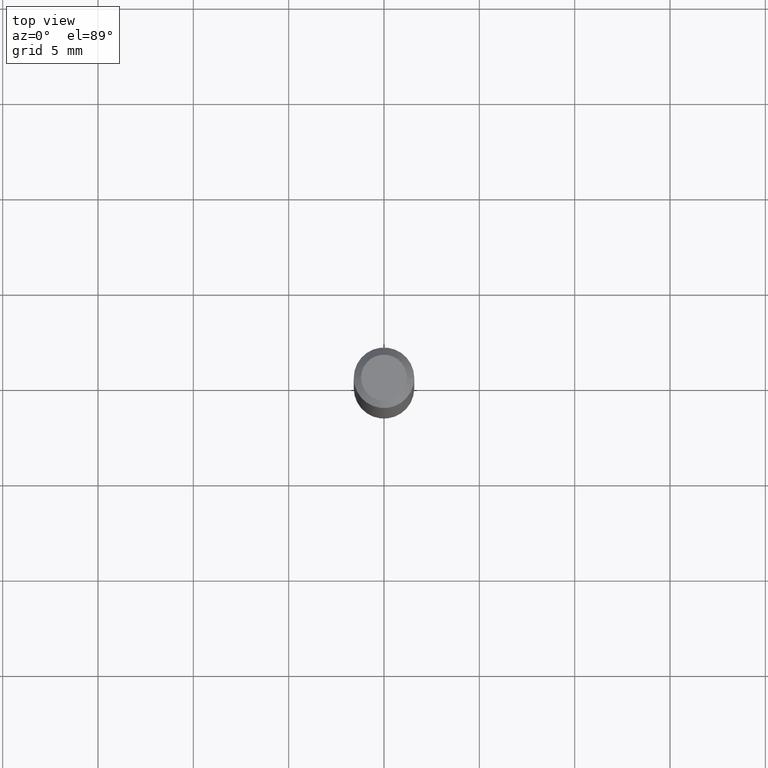
[diagram: clean part render]
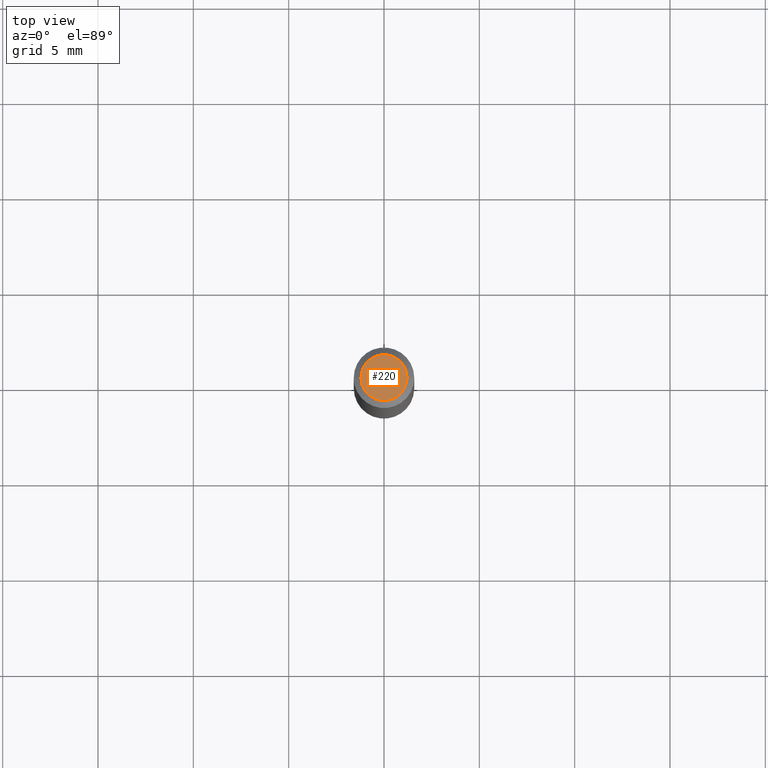
[diagram: same view with one face highlighted and labeled with its STEP entity id]
A machine part, top view. The second image highlights one B-rep face of the part: STEP entity #220.
In plain terms, the highlighted planar face has unit normal (0, -0, -1).
Its self-contained STEP definition (entity closure, byte-faithful):
#17 = CARTESIAN_POINT ( 'NONE',  ( 0.04749999999999999362, -4.035134999187593414E-16, -8.506713692488677736E-16 ) ) ;
#22 = FACE_OUTER_BOUND ( 'NONE', #388, .T. ) ;
#26 = AXIS2_PLACEMENT_3D ( 'NONE', #296, #260, #119 ) ;
#56 = CARTESIAN_POINT ( 'NONE',  ( -0.04749999999999999362, 3.578768372314195715E-16, -8.506713692488727040E-16 ) ) ;
#71 = AXIS2_PLACEMENT_3D ( 'NONE', #305, #270, #446 ) ;
#81 = ORIENTED_EDGE ( 'NONE', *, *, #140, .T. ) ;
#95 = CARTESIAN_POINT ( 'NONE',  ( 2.080290297812910479E-44, -2.970103211220577886E-30, -8.506713692488703374E-16 ) ) ;
#111 = CIRCLE ( 'NONE', #373, 0.04749999999999999362 ) ;
#119 = DIRECTION ( 'NONE',  ( 1.000000000000000000, -6.982962677686267499E-15, 4.852736867747366768E-29 ) ) ;
#140 = EDGE_CURVE ( 'NONE', #330, #179, #300, .T. ) ;
#151 = DIRECTION ( 'NONE',  ( -2.445468806185136597E-29, 3.491481338843145583E-15, 1.000000000000000000 ) ) ;
#157 = DIRECTION ( 'NONE',  ( 1.000000000000000000, -6.982962677686267499E-15, 4.852736867747366768E-29 ) ) ;
#161 = PLANE ( 'NONE',  #71 ) ;
#179 = VERTEX_POINT ( 'NONE', #17 ) ;
#220 = ADVANCED_FACE ( 'NONE', ( #22 ), #161, .F. ) ;
#260 = DIRECTION ( 'NONE',  ( -2.445468806185136597E-29, 3.491481338843145583E-15, 1.000000000000000000 ) ) ;
#270 = DIRECTION ( 'NONE',  ( 2.438088387897960049E-29, -3.491481338843145188E-15, -1.000000000000000000 ) ) ;
#273 = EDGE_CURVE ( 'NONE', #179, #330, #111, .T. ) ;
#296 = CARTESIAN_POINT ( 'NONE',  ( 2.080290297812910479E-44, -2.970103211220577886E-30, -8.506713692488703374E-16 ) ) ;
#300 = CIRCLE ( 'NONE', #26, 0.04749999999999999362 ) ;
#305 = CARTESIAN_POINT ( 'NONE',  ( 3.316907271900976096E-16, 0.04749999999999999362, -5.911810482194846144E-16 ) ) ;
#323 = ORIENTED_EDGE ( 'NONE', *, *, #273, .T. ) ;
#330 = VERTEX_POINT ( 'NONE', #56 ) ;
#373 = AXIS2_PLACEMENT_3D ( 'NONE', #95, #151, #157 ) ;
#388 = EDGE_LOOP ( 'NONE', ( #81, #323 ) ) ;
#446 = DIRECTION ( 'NONE',  ( -1.000000000000000000, 6.982962677686265922E-15, -4.876176775795935793E-29 ) ) ;